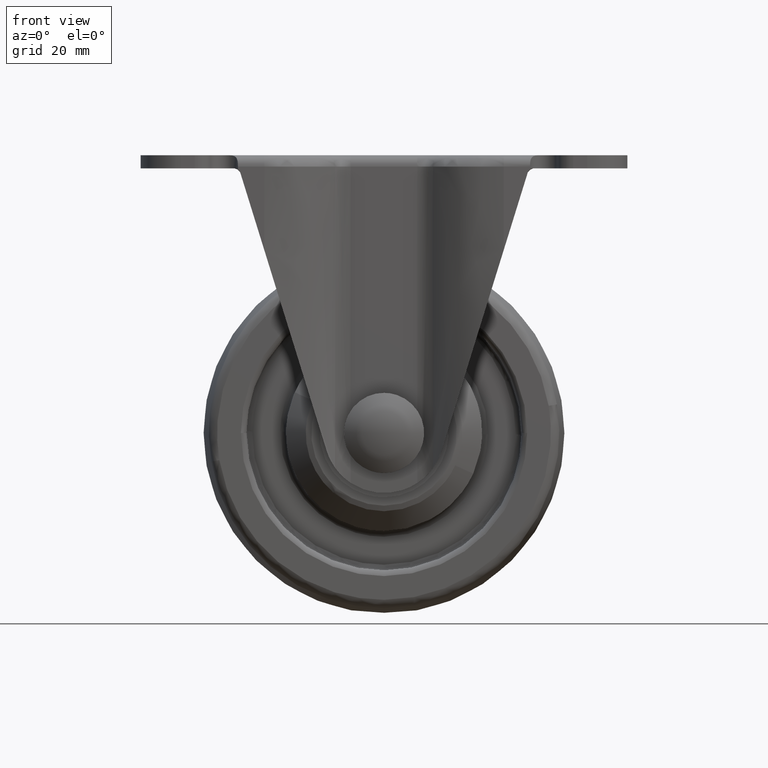
[diagram: clean part render]
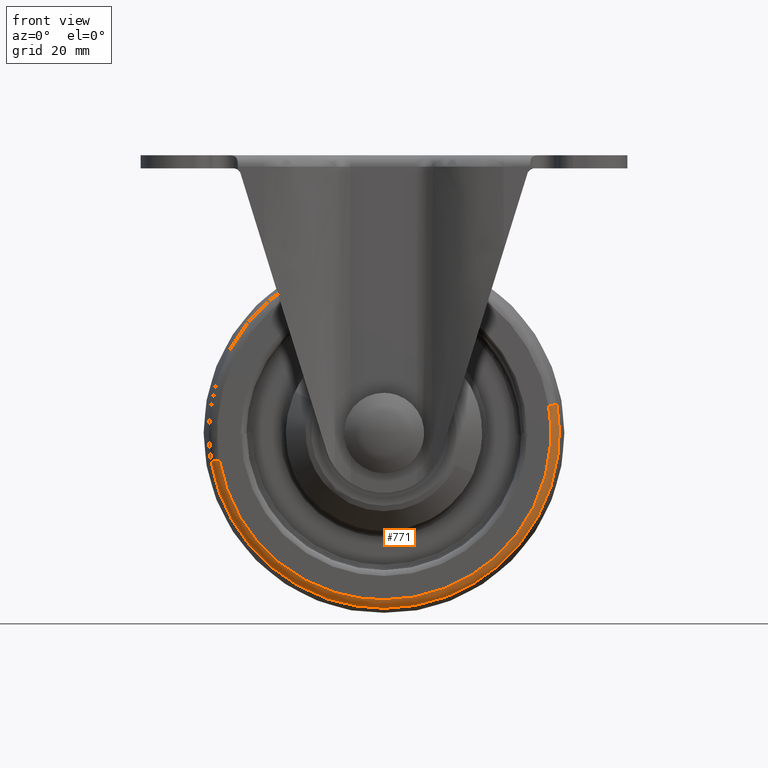
[diagram: same view with one face highlighted and labeled with its STEP entity id]
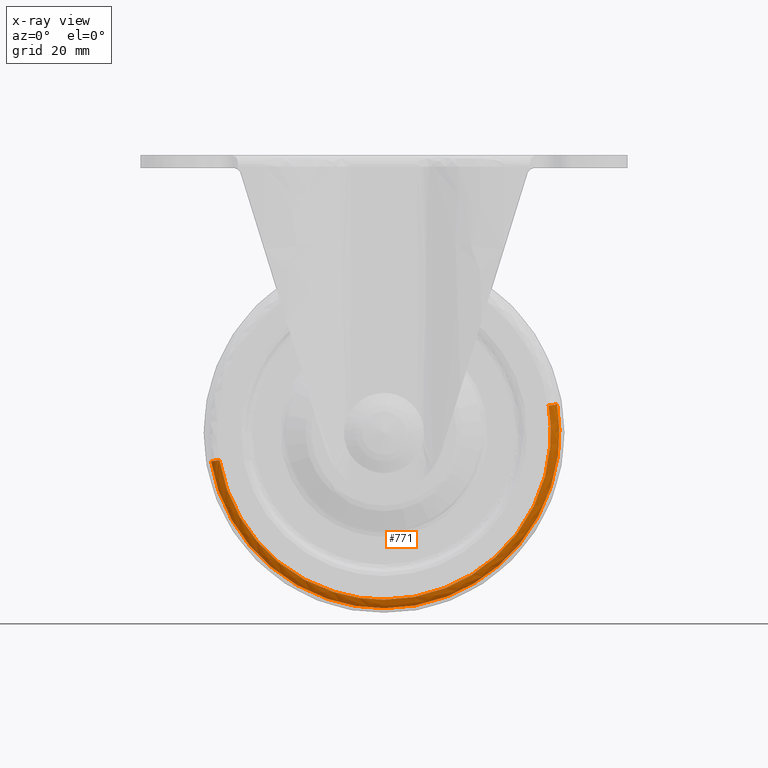
[diagram: x-ray of the same camera — body ghosted, the highlighted face saturated]
A machine part, front view. The second image highlights one B-rep face of the part: STEP entity #771.
The next image is the same camera in x-ray: the body ghosted, the highlighted face saturated — about 0% of this face is hidden behind the body in this view.
In plain terms, the highlighted face is a freeform B-spline surface patch.
Its self-contained STEP definition (entity closure, byte-faithful):
#536=CARTESIAN_POINT('',(0.0,-10.256388539232571,-30.616886250584830));
#537=VERTEX_POINT('',#536);
#565=CARTESIAN_POINT('',(30.209250449868151,-10.256395084583710,4.979445335006801));
#566=VERTEX_POINT('',#565);
#580=CARTESIAN_POINT('',(0.0,-10.256388539232571,-30.616886250584830));
#581=CARTESIAN_POINT('',(30.616884676135946,-10.256388638354387,-30.616886158277111));
#582=CARTESIAN_POINT('',(30.616885336012309,-10.256394183978710,0.000001085982404));
#583=CARTESIAN_POINT('',(30.616885390032138,-10.256394637963254,2.506408438156698));
#584=CARTESIAN_POINT('',(30.209250449868147,-10.256395084583708,4.979445335006801));
#592=(BOUNDED_CURVE()B_SPLINE_CURVE(2,(#580,#581,#582,#583,#584),.UNSPECIFIED.,.F.,.U.)B_SPLINE_CURVE_WITH_KNOTS((3,2,3),(0.0,0.250000000000000,0.277993893965628),.UNSPECIFIED.)CURVE()GEOMETRIC_REPRESENTATION_ITEM()RATIONAL_B_SPLINE_CURVE((1.0,0.707106781186548,1.0,0.967203113157139,0.941751126895732))REPRESENTATION_ITEM(''));
#593=EDGE_CURVE('',#537,#566,#592,.T.);
#642=CARTESIAN_POINT('',(-30.209250762812061,-10.256393316953931,-4.979441603875046));
#643=VERTEX_POINT('',#642);
#644=CARTESIAN_POINT('',(-30.209250762812069,-10.256393316953925,-4.979441603875046));
#645=CARTESIAN_POINT('',(-25.983387041197947,-10.256388655144320,-30.616886358523423));
#646=CARTESIAN_POINT('',(0.0,-10.256388539232571,-30.616886250584830));
#654=(BOUNDED_CURVE()B_SPLINE_CURVE(2,(#644,#645,#646),.UNSPECIFIED.,.F.,.U.)B_SPLINE_CURVE_WITH_KNOTS((3,3),(0.777993883166173,1.0),.UNSPECIFIED.)CURVE()GEOMETRIC_REPRESENTATION_ITEM()RATIONAL_B_SPLINE_CURVE((0.941751146533414,0.739903655377060,1.0))REPRESENTATION_ITEM(''));
#655=EDGE_CURVE('',#643,#537,#654,.T.);
#678=CARTESIAN_POINT('',(-30.361636951369530,-10.162082009791401,-4.136684859512357));
#679=CARTESIAN_POINT('',(-30.292407766695273,-10.162082009791403,-4.556683962209513));
#680=CARTESIAN_POINT('',(-25.240761959843944,-10.162082009791401,-35.203971172141834));
#681=CARTESIAN_POINT('',(4.981605551827645,-10.162082009791401,-30.222365620314179));
#682=CARTESIAN_POINT('',(35.203973063499234,-10.162082009791401,-25.240760068486551));
#683=CARTESIAN_POINT('',(30.152327256604615,-10.162082009791401,5.406527141708594));
#684=CARTESIAN_POINT('',(30.083098071888038,-10.162082009791400,5.826526244662496));
#685=CARTESIAN_POINT('',(-30.207995958658799,-11.588141425526214,-4.115751710882884));
#686=CARTESIAN_POINT('',(-30.139117098990898,-11.588141425526214,-4.533625464437009));
#687=CARTESIAN_POINT('',(-25.113034468388307,-11.588141425526217,-35.025826186826940));
#688=CARTESIAN_POINT('',(4.956396804898024,-11.588141425526214,-30.069429381928892));
#689=CARTESIAN_POINT('',(35.025828078184361,-11.588141425526217,-25.113032577030914));
#690=CARTESIAN_POINT('',(29.999745447538679,-11.588141425526214,5.379168145620547));
#691=CARTESIAN_POINT('',(29.930866587828664,-11.588141425526214,5.797041899430091));
#692=CARTESIAN_POINT('',(-28.788989012293481,-11.496967011973737,-3.922416047070591));
#693=CARTESIAN_POINT('',(-28.723345705902933,-11.496967011973737,-4.320660370065696));
#694=CARTESIAN_POINT('',(-23.933361033456563,-11.496967011973735,-33.380503755866563));
#695=CARTESIAN_POINT('',(4.723572306883708,-11.496967011973737,-28.656931448982878));
#696=CARTESIAN_POINT('',(33.380505647223977,-11.496967011973735,-23.933359142099164));
#697=CARTESIAN_POINT('',(28.590520974736567,-11.496967011973737,5.126484243950927));
#698=CARTESIAN_POINT('',(28.524877668305898,-11.496967011973746,5.524728567189477));
#706=(BOUNDED_SURFACE()B_SPLINE_SURFACE(2,2,((#678,#685,#692),(#679,#686,#693),(#680,#687,#694),(#681,#688,#695),(#682,#689,#696),(#683,#690,#697),(#684,#691,#698)),.UNSPECIFIED.,.F.,.F.,.U.)B_SPLINE_SURFACE_WITH_KNOTS((3,1,2,1,3),(3,3),(0.0,1.014994859018917,51.764737809531987,102.514480760045100,103.529475619695400),(0.0,2.407700482496270),.UNSPECIFIED.)GEOMETRIC_REPRESENTATION_ITEM()RATIONAL_B_SPLINE_SURFACE(((0.925418667711260,0.668274015964940,0.923912505033718),(0.920060465903475,0.664404689393763,0.918563023952955),(0.646792173708751,0.467069034265367,0.645739488836319),(0.914702264095691,0.660535362822585,0.913213542872191),(0.646792173708751,0.467069034265367,0.645739488836319),(0.920060465906809,0.664404689396170,0.918563023956282),(0.925418667717927,0.668274015969754,0.923912505040373)))REPRESENTATION_ITEM('')SURFACE());
#707=ORIENTED_EDGE('',*,*,#655,.T.);
#708=ORIENTED_EDGE('',*,*,#593,.T.);
#709=CARTESIAN_POINT('',(28.751004252557809,-11.500000000000000,4.739080071305153));
#710=VERTEX_POINT('',#709);
#711=CARTESIAN_POINT('',(30.209250449868151,-10.256395084583708,4.979445335006800));
#712=CARTESIAN_POINT('',(29.996378853556770,-11.499999868234134,4.944357338750685));
#713=CARTESIAN_POINT('',(28.751004252557809,-11.500000000000004,4.739080071305153));
#721=(BOUNDED_CURVE()B_SPLINE_CURVE(2,(#711,#712,#713),.UNSPECIFIED.,.F.,.U.)B_SPLINE_CURVE_WITH_KNOTS((3,3),(-1.703902941040026,-0.300625579490202),.UNSPECIFIED.)CURVE()GEOMETRIC_REPRESENTATION_ITEM()RATIONAL_B_SPLINE_CURVE((0.892660981623219,0.682508282721178,0.891308975890647))REPRESENTATION_ITEM(''));
#722=EDGE_CURVE('',#566,#710,#721,.T.);
#723=ORIENTED_EDGE('',*,*,#722,.T.);
#724=CARTESIAN_POINT('',(0.0,-11.500000000000000,-29.138960108642578));
#725=VERTEX_POINT('',#724);
#726=CARTESIAN_POINT('',(0.0,-11.500000000000000,-29.138960108642578));
#727=CARTESIAN_POINT('',(29.138962007822247,-11.500000000000000,-29.138960107353231));
#728=CARTESIAN_POINT('',(29.138962017039411,-11.500000000000000,0.000001894166061));
#729=CARTESIAN_POINT('',(29.138962017793961,-11.500000000000002,2.385420782833279));
#730=CARTESIAN_POINT('',(28.751004252557809,-11.499999999999998,4.739080071305153));
#738=(BOUNDED_CURVE()B_SPLINE_CURVE(2,(#726,#727,#728,#729,#730),.UNSPECIFIED.,.F.,.U.)B_SPLINE_CURVE_WITH_KNOTS((3,2,3),(0.0,0.250000000000000,0.277993891203451),.UNSPECIFIED.)CURVE()GEOMETRIC_REPRESENTATION_ITEM()RATIONAL_B_SPLINE_CURVE((1.0,0.707106781186548,1.0,0.967203116393230,0.941751131918462))REPRESENTATION_ITEM(''));
#739=EDGE_CURVE('',#725,#710,#738,.T.);
#740=ORIENTED_EDGE('',*,*,#739,.F.);
#741=CARTESIAN_POINT('',(-28.751004252557809,-11.500000000000000,-4.739076288590312));
#742=VERTEX_POINT('',#741);
#743=CARTESIAN_POINT('',(-28.751004252557806,-11.500000000000000,-4.739076288590312));
#744=CARTESIAN_POINT('',(-24.729128833232760,-11.499999999999998,-29.138960110161840));
#745=CARTESIAN_POINT('',(0.0,-11.500000000000000,-29.138960108642578));
#753=(BOUNDED_CURVE()B_SPLINE_CURVE(2,(#743,#744,#745),.UNSPECIFIED.,.F.,.U.)B_SPLINE_CURVE_WITH_KNOTS((3,3),(0.777993891203451,1.0),.UNSPECIFIED.)CURVE()GEOMETRIC_REPRESENTATION_ITEM()RATIONAL_B_SPLINE_CURVE((0.941751131918462,0.739903664793317,1.0))REPRESENTATION_ITEM(''));
#754=EDGE_CURVE('',#742,#725,#753,.T.);
#755=ORIENTED_EDGE('',*,*,#754,.F.);
#756=CARTESIAN_POINT('',(-30.209250762812065,-10.256393316953925,-4.979441603875046));
#757=CARTESIAN_POINT('',(-29.996380371851885,-11.499999869120227,-4.944353806299078));
#758=CARTESIAN_POINT('',(-28.751004252557806,-11.500000000000004,-4.739076288590305));
#766=(BOUNDED_CURVE()B_SPLINE_CURVE(2,(#756,#757,#758),.UNSPECIFIED.,.F.,.U.)B_SPLINE_CURVE_WITH_KNOTS((3,3),(-1.703904246718873,-0.300625579490197),.UNSPECIFIED.)CURVE()GEOMETRIC_REPRESENTATION_ITEM()RATIONAL_B_SPLINE_CURVE((0.892661372696568,0.682508088442658,0.891308975890649))REPRESENTATION_ITEM(''));
#767=EDGE_CURVE('',#643,#742,#766,.T.);
#768=ORIENTED_EDGE('',*,*,#767,.F.);
#769=EDGE_LOOP('',(#707,#708,#723,#740,#755,#768));
#770=FACE_OUTER_BOUND('',#769,.T.);
#771=ADVANCED_FACE('',(#770),#706,.T.);